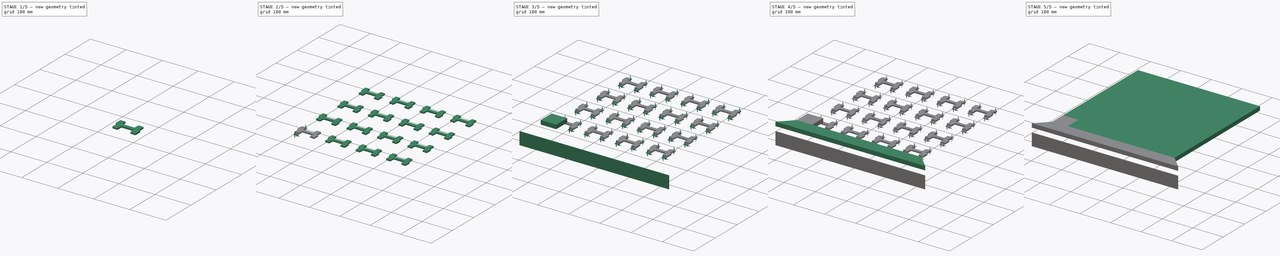
[diagram: build sequence overview — one tinted view per stage of 5, left to right]
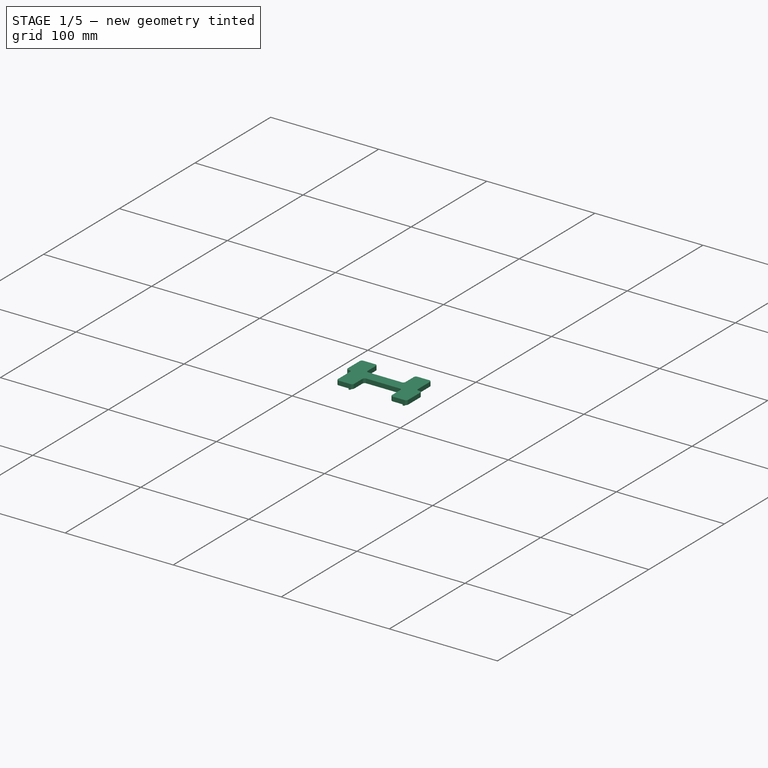
[diagram: stage 1 of 5 — iso view after this stage's code; geometry added in this stage tinted green]
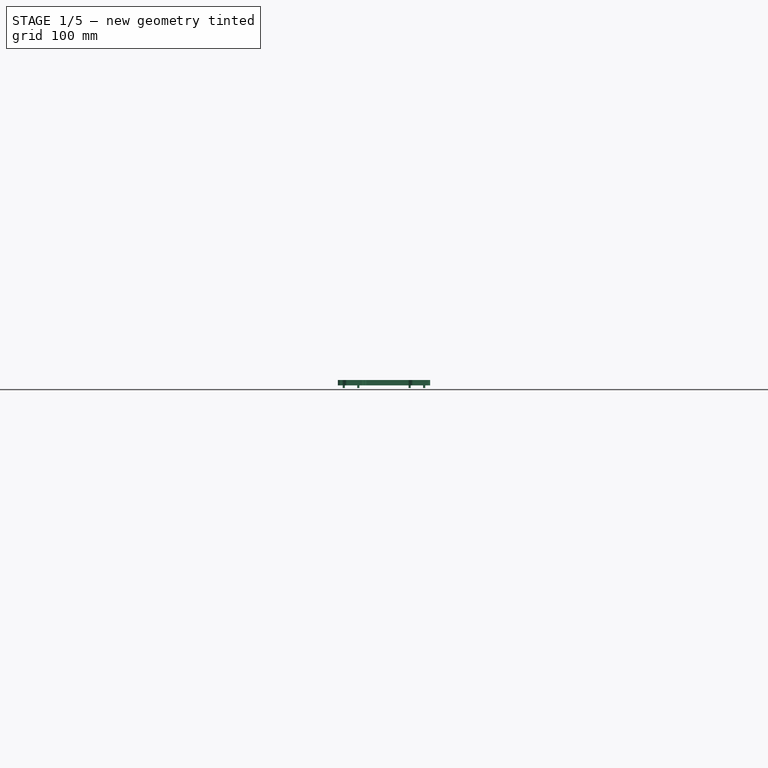
[diagram: stage 1 of 5 — front view after this stage's code; geometry added in this stage tinted green]
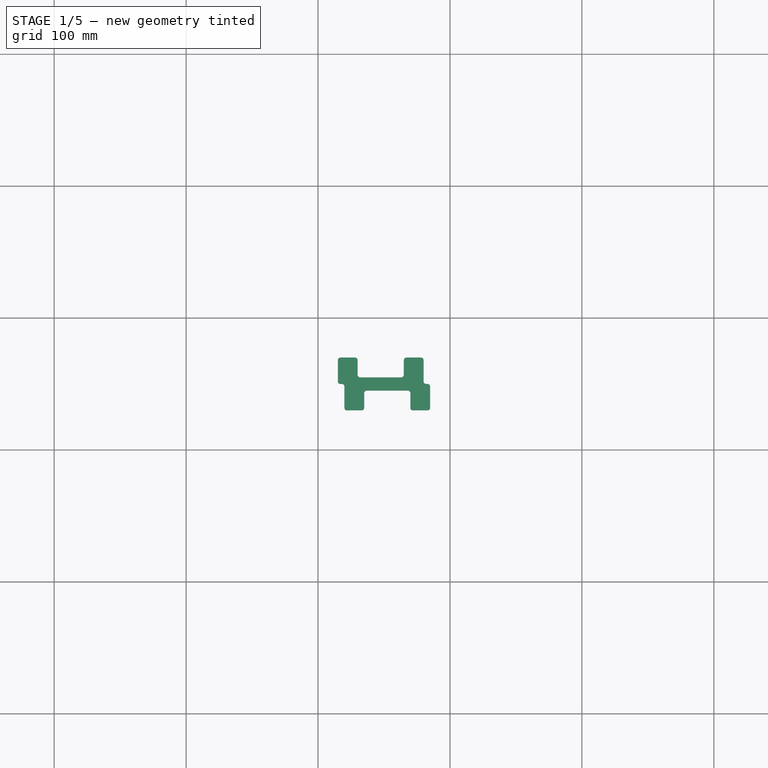
[diagram: stage 1 of 5 — top view after this stage's code; geometry added in this stage tinted green]
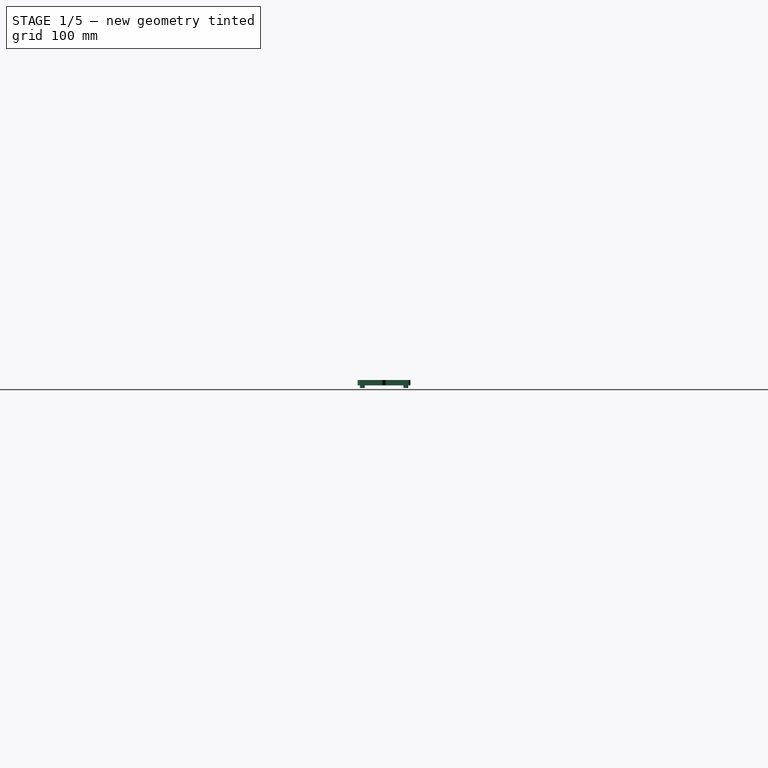
[diagram: stage 1 of 5 — right view after this stage's code; geometry added in this stage tinted green]
FCSTD DOCUMENT  (FreeCAD 0.19R23578 (Git))
Label: board
License: All rights reserved
LicenseURL: http://en.wikipedia.org/wiki/All_rights_reserved
objects: PartDesign::Body×13, Sketcher::SketchObject×10, PartDesign::FeatureBase×9, PartDesign::Pad×5, Part::FeaturePython×4, App::Part×4, Part::Feature×3, PartDesign::Pocket×2, PartDesign::Fillet×2, PartDesign::Hole×2, Part::Compound×1, PartDesign::Line×1, PartDesign::LinearPattern×1, PartDesign::PolarPattern×1, PartDesign::MultiTransform×1, PartDesign::CoordinateSystem×1
note: 63 computed .brp shape members not serialized (recipe doc carries the construction recipe); baked Part::Feature solids carry a one-line shape summary decoded from their .brp

FEATURE [PartDesign::Body] Body012  label="WallW"
  BaseFeature = -> Body009
  Group = -> [Clone009]
  Origin = -> Origin016
  Placement = pos=(8.9e-14,400,15) rot=(0,0,-1;1.5708rad)
  Tip = -> Clone009
FEATURE [Sketcher::SketchObject] Sketch006
  Placement = pos=(0,0,0) rot=(1,0,0;3.14159rad)
  sketch-geometry (16):
    g0: LineSegment StartX=15 StartY=-50 StartZ=0 EndX=15 EndY=-70 EndZ=0
    g1: LineSegment StartX=20 StartY=-30 StartZ=0 EndX=35 EndY=-30 EndZ=0
    g2: LineSegment StartX=35 StartY=-30 StartZ=0 EndX=35 EndY=-45 EndZ=0
    g3: LineSegment StartX=35 StartY=-45 StartZ=0 EndX=70 EndY=-45 EndZ=0
    g4: LineSegment StartX=70 StartY=-45 StartZ=0 EndX=70 EndY=-30 EndZ=0
    g5: LineSegment StartX=70 StartY=-30 StartZ=0 EndX=85 EndY=-30 EndZ=0
    g6: LineSegment StartX=85 StartY=-30 StartZ=0 EndX=85 EndY=-50 EndZ=0
    g7: LineSegment StartX=15 StartY=-70 StartZ=0 EndX=30 EndY=-70 EndZ=0
    g8: LineSegment StartX=30 StartY=-70 StartZ=0 EndX=30 EndY=-55 EndZ=0
    g9: LineSegment StartX=30 StartY=-55 StartZ=0 EndX=65 EndY=-55 EndZ=0
    g10: LineSegment StartX=65 StartY=-55 StartZ=0 EndX=65 EndY=-70 EndZ=0
    g11: LineSegment StartX=65 StartY=-70 StartZ=0 EndX=80 EndY=-70 EndZ=0
    g12: LineSegment StartX=20 StartY=-30 StartZ=0 EndX=20 EndY=-50 EndZ=0
    g13: LineSegment StartX=20 StartY=-50 StartZ=0 EndX=15 EndY=-50 EndZ=0
    g14: LineSegment StartX=80 StartY=-70 StartZ=0 EndX=80 EndY=-50 EndZ=0
    g15: LineSegment StartX=80 StartY=-50 StartZ=0 EndX=85 EndY=-50 EndZ=0
  constraints (48):
    c: Vertical(g0)
    c: Horizontal(g1)
    c: Coincident(g2,g1)
    c: Coincident(g3,g2)
    c: Horizontal(g3)
    c: Coincident(g4,g3)
    c: Vertical(g4)
    c: Coincident(g5,g4)
    c: Horizontal(g5)
    c: Coincident(g6,g5)
    c: Vertical(g2)
    c: Vertical(g6)
    c: Coincident(g7,g0)
    c: Horizontal(g7)
    c: Coincident(g8,g7)
    c: Vertical(g8)
    c: Coincident(g9,g8)
    c: Horizontal(g9)
    c: Coincident(g10,g9)
    c: Coincident(g11,g10)
    c: Horizontal(g11)
    c: DistanceX(g-2,g0) = 15
    c: DistanceX(g1,g1) = 15
    c: Distance(g8,g3) = 10
    c: Vertical(g12)
    c: Coincident(g13,g12)
    c: Horizontal(g13)
    c: Vertical(g14)
    c: Coincident(g15,g14)
    c: Horizontal(g15)
    c: Coincident(g13,g0)
    c: Coincident(g1,g12)
    c: Distance(g1,g4) = 50
    c: Coincident(g6,g15)
    c: Coincident(g11,g14)
    c: DistanceX(g13,g13) = 5
    c: Equal(g10,g8)
    c: DistanceY(g-1,g1) = -30
    c: Equal(g1,g5)
    c: Vertical(g10)
    c: DistanceY(g12,g12) = 20
    c: Equal(g12,g0)
    c: Equal(g6,g14)
    c: Equal(g4,g2)
    c: Equal(g7,g11)
    c: Equal(g1,g7)
    c: Equal(g13,g15)
    c: DistanceY(g10,g10) = 15
FEATURE [PartDesign::Pad] Pad004
  Direction = (1,1,1)
  Length = 4
  Length2 = 100
  Placement = pos=(0,0,0) rot=(1,0,0;3.14159rad)
  Profile = -> Sketch006
  Type = 0
FEATURE [PartDesign::Fillet] Fillet
  Base = -> Pad004 [Edge1,Edge2,Edge5,Edge8,Edge11,Edge14,Edge17,Edge20,Edge23,Edge26,Edge29,Edge32,Edge35,Edge38,Edge41,Edge44]
  BaseFeature = -> Pad004
  Placement = pos=(0,0,0) rot=(1,0,0;3.14159rad)
  Radius = 2
  SupportTransform = false
FEATURE [Sketcher::SketchObject] Sketch007  label="SpacerPCBHoleS"
  MapMode = 5
  Placement = pos=(0,0,-4) rot=(1,0,0;3.14159rad)
  Support = -> [Fillet]
  expr: Constraints[5] = .Constraints.hole_y
  sketch-geometry (4):
    g0: Circle CenterX=25 CenterY=-33.5 CenterZ=0 NormalX=0 NormalY=0 NormalZ=1 AngleXU=0 Radius=1.25
    g1: Circle CenterX=75 CenterY=-33.5 CenterZ=0 NormalX=0 NormalY=0 NormalZ=1 AngleXU=0 Radius=1.25
    g2: Circle CenterX=25 CenterY=-66.5 CenterZ=0 NormalX=0 NormalY=0 NormalZ=1 AngleXU=0 Radius=1.25
    g3: Circle CenterX=75 CenterY=-66.5 CenterZ=0 NormalX=0 NormalY=0 NormalZ=1 AngleXU=0 Radius=1.25
  constraints (12):
    c: DistanceY(g-1,g0) = -33.5  'hole_y'
    c: DistanceX(g-2,g0) = 25
    c: Diameter(g0) = 2.5
    c: Equal(g1,g0)
    c: Distance(g1,g0) = 50
    c: DistanceY(g-1,g1) = -33.5
    c: Equal(g2,g0)
    c: Equal(g3,g0)
    c: Distance(g2,g3) = 50
    c: DistanceY(g3,g-1) = 66.5
    c: DistanceY(g2,g-1) = 66.5
    c: DistanceX(g-1,g2) = 25
FEATURE [Sketcher::SketchObject] Sketch008  label="SpacerHookS"
  MapMode = 5
  Placement = pos=(0,0,-4) rot=(1,0,0;3.14159rad)
  sketch-geometry (4):
    g0: LineSegment StartX=29.7 StartY=-32.5 StartZ=0 EndX=29.7 EndY=-34.5 EndZ=0
    g1: LineSegment StartX=31.3 StartY=-32.5 StartZ=0 EndX=31.3 EndY=-34.5 EndZ=0
    g2: ArcOfCircle CenterX=30.5 CenterY=-32.5 CenterZ=0 NormalX=0 NormalY=0 NormalZ=1 AngleXU=0 Radius=0.8 StartAngle=-2.7e-15 EndAngle=3.14159
    g3: ArcOfCircle CenterX=30.5 CenterY=-34.5 CenterZ=0 NormalX=0 NormalY=0 NormalZ=1 AngleXU=0 Radius=0.8 StartAngle=3.14159 EndAngle=6.28319
  constraints (11):
    c: Vertical(g0)
    c: Vertical(g1)
    c: Tangent(g0,g2) = -1.5708
    c: Tangent(g1,g2) = 1.5708
    c: Tangent(g0,g3) = -1.5708
    c: Tangent(g1,g3) = 1.5708
    c: Equal(g0,g1)
    c: Radius(g2) = 0.8
    c: DistanceY(g0,g0) = 2
    c: DistanceY(g-1,g2) = -32.5
    c: DistanceX(g-2,g2) = 30.5
FEATURE [PartDesign::Pad] Pad005  label="SpacerHook"
  BaseFeature = -> Fillet
  Direction = (1,1,1)
  Length = 2
  Length2 = 100
  Placement = pos=(0,0,0) rot=(1,0,0;3.14159rad)
  Profile = -> Sketch008
  Type = 0
FEATURE [PartDesign::Line] DatumLine  label="CenterAxis"
  AttacherType = Attacher::AttachEngineLine
  AttachmentOffset = pos=(50,-50,0) rot=(0,0,1;0rad)
  Length = 20
  MapMode = 18
  Placement = pos=(50,50,0) rot=(1,0,0;3.14159rad)
  ResizeMode = 0
  Support = -> [Pad005]
FEATURE [PartDesign::LinearPattern] LinearPattern
  Direction = -> Sketch008 [H_Axis]
  Length = 50
  Occurrences = 2
  Placement = pos=(0,0,0) rot=(1,0,0;3.14159rad)
FEATURE [PartDesign::PolarPattern] PolarPattern001
  Angle = 360
  Axis = -> DatumLine
  Occurrences = 2
  Placement = pos=(0,0,0) rot=(1,0,0;3.14159rad)
FEATURE [PartDesign::MultiTransform] MultiTransform
  BaseFeature = -> Pad005
  Originals = -> [Pad005]
  Placement = pos=(0,0,0) rot=(1,0,0;3.14159rad)
  Transformations = -> [LinearPattern,PolarPattern001]
FEATURE [Sketcher::SketchObject] Sketch009
  MapMode = 5
  Placement = pos=(0,0,-4) rot=(1,0,0;3.14159rad)
  Support = -> [MultiTransform]
  sketch-geometry (16):
    g0: LineSegment StartX=21.5 StartY=-40 StartZ=0 EndX=33.5 EndY=-40 EndZ=0
    g1: LineSegment StartX=33.5 StartY=-40 StartZ=0 EndX=33.5 EndY=-46.5 EndZ=0
    g2: LineSegment StartX=33.5 StartY=-46.5 StartZ=0 EndX=71.5 EndY=-46.5 EndZ=0
    g3: LineSegment StartX=71.5 StartY=-46.5 StartZ=0 EndX=71.5 EndY=-40 EndZ=0
    g4: LineSegment StartX=71.5 StartY=-40 StartZ=0 EndX=83.5 EndY=-40 EndZ=0
    g5: LineSegment StartX=28.5 StartY=-53.5 StartZ=0 EndX=66.5 EndY=-53.5 EndZ=0
    g6: LineSegment StartX=28.5 StartY=-53.5 StartZ=0 EndX=28.5 EndY=-60 EndZ=0
    g7: LineSegment StartX=28.5 StartY=-60 StartZ=0 EndX=16.5 EndY=-60 EndZ=0
    g8: LineSegment StartX=66.5 StartY=-60 StartZ=0 EndX=78.5 EndY=-60 EndZ=0
    g9: LineSegment StartX=78.5 StartY=-60 StartZ=0 EndX=78.5 EndY=-48.5 EndZ=0
    g10: LineSegment StartX=78.5 StartY=-48.5 StartZ=0 EndX=83.5 EndY=-48.5 EndZ=0
    g11: LineSegment StartX=83.5 StartY=-48.5 StartZ=0 EndX=83.5 EndY=-40 EndZ=0
    g12: LineSegment StartX=21.5 StartY=-40 StartZ=0 EndX=21.5 EndY=-51.5 EndZ=0
    g13: LineSegment StartX=21.5 StartY=-51.5 StartZ=0 EndX=16.5 EndY=-51.5 EndZ=0
    g14: LineSegment StartX=16.5 StartY=-51.5 StartZ=0 EndX=16.5 EndY=-60 EndZ=0
    g15: LineSegment StartX=66.5 StartY=-53.5 StartZ=0 EndX=66.5 EndY=-60 EndZ=0
  constraints (48):
    c: Horizontal(g0)
    c: Coincident(g1,g0)
    c: Vertical(g1)
    c: Horizontal(g2)
    c: Vertical(g3)
    c: Horizontal(g4)
    c: Horizontal(g5)
    c: Vertical(g6)
    c: Horizontal(g7)
    c: Horizontal(g8)
    c: Coincident(g9,g8)
    c: Vertical(g9)
    c: Horizontal(g10)
    c: Coincident(g11,g4)
    c: Vertical(g11)
    c: Coincident(g12,g0)
    c: Vertical(g12)
    c: Coincident(g14,g7)
    c: Vertical(g14)
    c: Coincident(g15,g5)
    c: Coincident(g15,g8)
    c: Coincident(g5,g6)
    c: Horizontal(g13)
    c: DistanceX(g0,g0) = 12
    c: DistanceY(g12,g12) = 11.5
    c: DistanceY(g1,g1) = 6.5
    c: Coincident(g2,g1)
    c: Coincident(g3,g2)
    c: DistanceX(g13,g13) = 5
    c: Coincident(g12,g13)
    c: Coincident(g13,g14)
    c: Equal(g0,g7)
    c: Equal(g7,g8)
    c: Equal(g8,g4)
    c: Coincident(g9,g10)
    c: Coincident(g10,g11)
    c: Coincident(g3,g4)
    c: Equal(g12,g9)
    c: Equal(g6,g1)
    c: Equal(g1,g3)
    c: Equal(g10,g13)
    c: DistanceX(g2,g2) = 38
    c: Equal(g2,g5)
    c: DistanceY(g-1,g0) = -40
    c: DistanceX(g-2,g0) = 21.5
    c: Equal(g14,g11)
    c: Coincident(g6,g7)
    c: Distance(g7,g0) = 20
FEATURE [PartDesign::Pocket] Pocket002
  BaseFeature = -> MultiTransform
  Length = 2
  Length2 = 100
  Placement = pos=(0,0,0) rot=(1,0,0;3.14159rad)
  Profile = -> Sketch009
  Type = 0
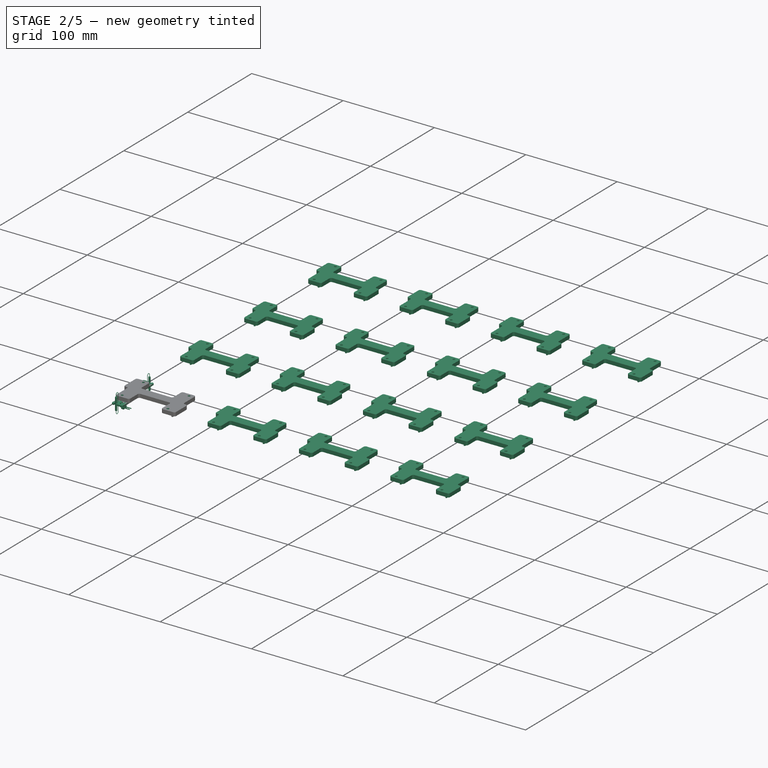
[diagram: stage 2 of 5 — iso view after this stage's code; geometry added in this stage tinted green]
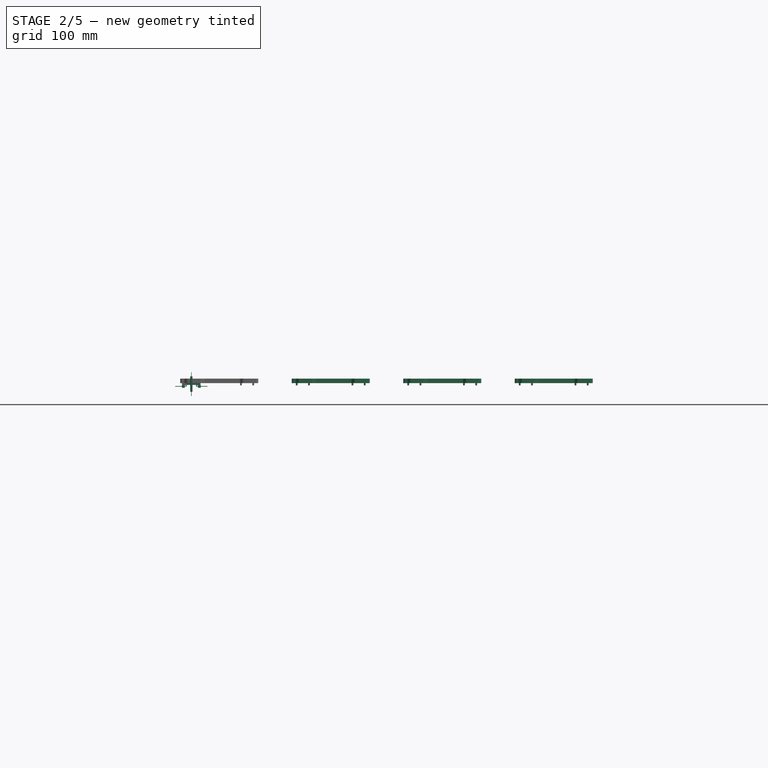
[diagram: stage 2 of 5 — front view after this stage's code; geometry added in this stage tinted green]
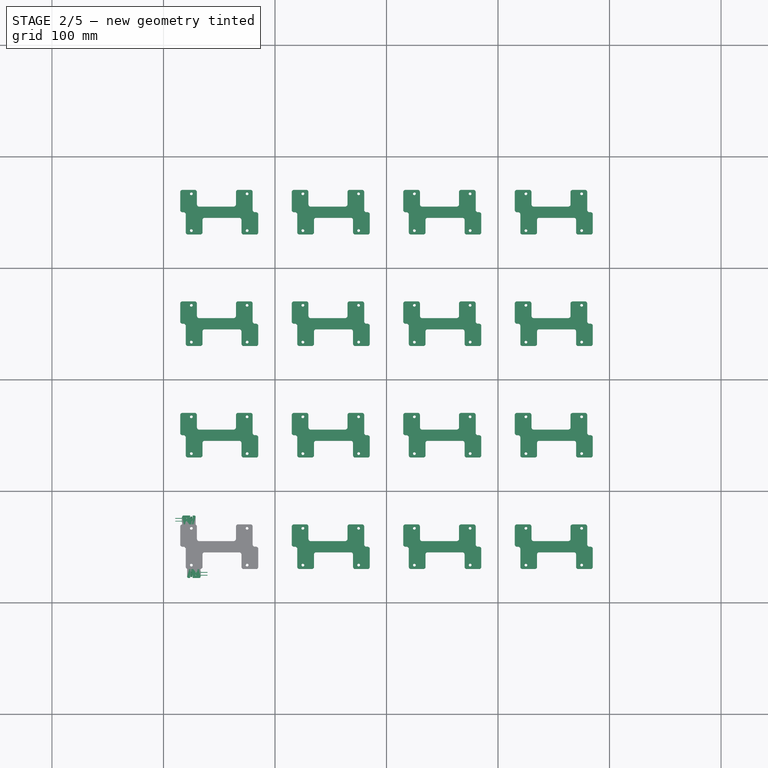
[diagram: stage 2 of 5 — top view after this stage's code; geometry added in this stage tinted green]
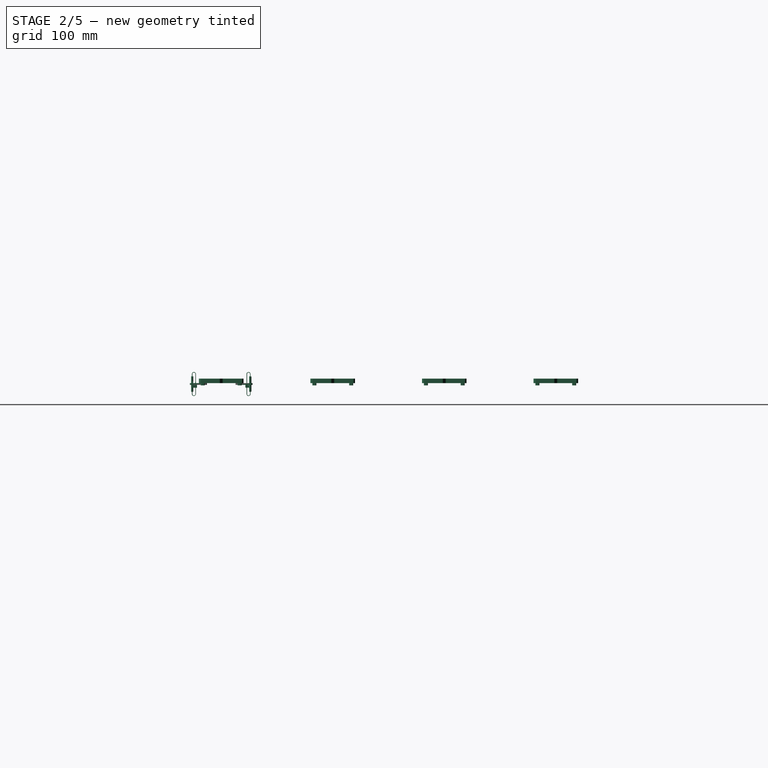
[diagram: stage 2 of 5 — right view after this stage's code; geometry added in this stage tinted green]
FEATURE [PartDesign::Fillet] Fillet001
  Base = -> Pocket002 [Edge154,Edge153,Edge182,Edge180,Edge178,Edge176,Edge174,Edge172,Edge170,Edge168,Edge166,Edge164,Edge162,Edge160,Edge158,Edge156]
  BaseFeature = -> Pocket002
  Placement = pos=(0,0,0) rot=(1,0,0;3.14159rad)
  Radius = 1
  SupportTransform = false
FEATURE [PartDesign::Hole] Hole  label="SpacerPCBHole"
  BaseFeature = -> Fillet001
  Depth = 25
  DepthType = 1
  Diameter = 2.5
  DrillPoint = 0
  DrillPointAngle = 118
  HoleCutCountersinkAngle = 90
  HoleCutDepth = 0
  HoleCutDiameter = 0
  HoleCutType = 0
  ModelActualThread = false
  Placement = pos=(0,0,0) rot=(1,0,0;3.14159rad)
  Profile = -> Sketch007
  Tapered = false
  TaperedAngle = 90
  ThreadAngle = 60
  ThreadClass = 0
  ThreadCutOffInner = 0.0541266
  ThreadCutOffOuter = 0.108253
  ThreadDirection = 0
  ThreadFit = 0
  ThreadPitch = 0.5
  ThreadSize = 9
  ThreadType = 1
  Threaded = true
FEATURE [Sketcher::SketchObject] Sketch010
  MapMode = 5
  Placement = pos=(0,3e-16,-2) rot=(1,0,0;3.14159rad)
  Support = -> [Hole]
  sketch-geometry (2):
    g0: Circle CenterX=25 CenterY=-50 CenterZ=0 NormalX=0 NormalY=0 NormalZ=1 AngleXU=0 Radius=1.7
    g1: Circle CenterX=75 CenterY=-50 CenterZ=0 NormalX=0 NormalY=0 NormalZ=1 AngleXU=0 Radius=1.7
  constraints (6):
    c: Equal(g0,g1)
    c: Diameter(g0) = 3.4
    c: DistanceY(g-1,g0) = -50
    c: DistanceY(g-1,g1) = -50
    c: DistanceX(g-2,g0) = 25
    c: DistanceX(g-2,g1) = 75
FEATURE [PartDesign::Hole] Hole001
  BaseFeature = -> Hole
  Depth = 25
  DepthType = 1
  Diameter = 3.4
  DrillPoint = 0
  DrillPointAngle = 118
  HoleCutCountersinkAngle = 90
  HoleCutDepth = 0
  HoleCutDiameter = 6
  HoleCutType = 0
  ModelActualThread = false
  Placement = pos=(0,0,0) rot=(1,0,0;3.14159rad)
  Profile = -> Sketch010
  Tapered = false
  TaperedAngle = 90
  ThreadAngle = 60
  ThreadClass = 0
  ThreadCutOffInner = 0.0541266
  ThreadCutOffOuter = 0.108253
  ThreadDirection = 0
  ThreadFit = 0
  ThreadPitch = 0.5
  ThreadSize = 9
  ThreadType = 1
  Threaded = false
FEATURE [PartDesign::Body] Body013  label="SpacerB"
  Group = -> [Pad004,Fillet,Sketch007,Sketch008,Pad005,DatumLine,MultiTransform,LinearPattern,PolarPattern001,Sketch009,Pocket002,Fillet001,Hole,Sketch010,Hole001]
  Origin = -> Origin017
  Tip = -> Hole
FEATURE [PartDesign::CoordinateSystem] Local_CS_bfe008
  AttacherType = Attacher::AttachEngine3D
FEATURE [Part::Feature] Pcb_bfe008
  Placement = pos=(-158.115,99.822,0) rot=(0,0,1;0rad)
  shape: bbox 12.07 x 15.24 x 1.6 mm, 23 faces (baked)
FEATURE [Sketcher::SketchObject] PCB_Sketch_bfe008
  sketch-geometry (19):
    g0: LineSegment StartX=-4.5 StartY=9.5 StartZ=0 EndX=-4.5 EndY=7.5 EndZ=0
    g1: LineSegment StartX=-6.5 StartY=9.5 StartZ=0 EndX=-6.5 EndY=7.5 EndZ=0
    g2: LineSegment StartX=-6.985 StartY=-3.048 StartZ=0 EndX=-1.143 EndY=-3.048 EndZ=0
    g3: LineSegment StartX=-8.255 StartY=10.922 StartZ=0 EndX=-8.255 EndY=-1.778 EndZ=0
    g4: LineSegment StartX=2.54 StartY=12.192 StartZ=0 EndX=-6.985 EndY=12.192 EndZ=0
    g5: LineSegment StartX=3.81 StartY=-1.778 StartZ=0 EndX=3.81 EndY=10.922 EndZ=0
    g6: LineSegment StartX=1.143 StartY=-3.048 StartZ=0 EndX=2.54 EndY=-3.048 EndZ=0
    g7: LineSegment StartX=-0.254 StartY=8.4e-15 StartZ=0 EndX=0.254 EndY=6.6e-15 EndZ=0
    g8: LineSegment StartX=1.143 StartY=-0.889 StartZ=0 EndX=1.143 EndY=-3.048 EndZ=0
    g9: LineSegment StartX=-1.143 StartY=-0.889 StartZ=0 EndX=-1.143 EndY=-3.048 EndZ=0
    g10: ArcOfCircle CenterX=-5.5 CenterY=7.5 CenterZ=0 NormalX=0 NormalY=0 NormalZ=1 AngleXU=0 Radius=1 StartAngle=3.14159 EndAngle=6.28319
    g11: ArcOfCircle CenterX=-5.5 CenterY=9.5 CenterZ=0 NormalX=0 NormalY=0 NormalZ=1 AngleXU=0 Radius=1 StartAngle=0 EndAngle=3.14159
    g12: ArcOfCircle CenterX=-6.985 CenterY=-1.778 CenterZ=0 NormalX=0 NormalY=0 NormalZ=1 AngleXU=0 Radius=1.27 StartAngle=3.14159 EndAngle=4.71239
    g13: ArcOfCircle CenterX=2.54 CenterY=-1.778 CenterZ=0 NormalX=0 NormalY=0 NormalZ=1 AngleXU=0 Radius=1.27 StartAngle=4.71239 EndAngle=6.28319
    g14: ArcOfCircle CenterX=2.54 CenterY=10.922 CenterZ=0 NormalX=0 NormalY=0 NormalZ=1 AngleXU=0 Radius=1.27 StartAngle=0 EndAngle=1.5708
    g15: ArcOfCircle CenterX=-6.985 CenterY=10.922 CenterZ=0 NormalX=0 NormalY=0 NormalZ=1 AngleXU=0 Radius=1.27 StartAngle=1.5708 EndAngle=3.14159
    g16: ArcOfCircle CenterX=0.254 CenterY=-0.889 CenterZ=0 NormalX=0 NormalY=0 NormalZ=1 AngleXU=0 Radius=0.889 StartAngle=0 EndAngle=1.5708
    g17: ArcOfCircle CenterX=-0.254 CenterY=-0.889 CenterZ=0 NormalX=0 NormalY=0 NormalZ=1 AngleXU=0 Radius=0.889 StartAngle=1.5708 EndAngle=3.14159
    g18: Circle CenterX=0 CenterY=8.5 CenterZ=0 NormalX=0 NormalY=0 NormalZ=1 AngleXU=0 Radius=1.7
  constraints (18):
    c: Coincident(g3,g12)
    c: Coincident(g3,g15)
    c: Coincident(g2,g12)
    c: Coincident(g4,g15)
    c: Coincident(g1,g10)
    c: Coincident(g1,g11)
    c: Coincident(g0,g10)
    c: Coincident(g0,g11)
    c: Coincident(g2,g9)
    c: Coincident(g9,g17)
    c: Coincident(g7,g17)
    c: Coincident(g7,g16)
    c: Coincident(g6,g8)
    c: Coincident(g8,g16)
    c: Coincident(g6,g13)
    c: Coincident(g14,g4)
    c: Coincident(g13,g5)
    c: Coincident(g5,g14)
FEATURE [App::Part] Board_Geoms_bfe008  label="Board_Geoms_bfe010"
  Group = -> [Local_CS_bfe008,Pcb_bfe008,PCB_Sketch_bfe008]
  Origin = -> Origin019
FEATURE [Part::Feature] Shape002  label="SW1_Clone001_60011C9F001"
  Placement = pos=(0,2.032,0) rot=(0,0,1;0rad)
  shape: bbox 2.165 x 4.535 x 21.85 mm, 15 faces, 3 solids (baked)
FEATURE [Part::Feature] Shape003  label="J1_PinHeader_1x02_P254mm_Horizontal_60011D090"
  Placement = pos=(-4.445,-0.508,0) rot=(0,0,1;3.14159rad)
  shape: bbox 10.36 x 5.08 x 5.54 mm, 58 faces (baked)
FEATURE [App::Part] Top_bfe008  label="Top_bfe010"
  Group = -> [Shape002,Shape003]
  Origin = -> Origin021
FEATURE [App::Part] Step_Models_bfe008  label="Step_Models_bfe010"
  Group = -> [Top_bfe008]
  Origin = -> Origin020
FEATURE [App::Part] Board_bfe008  label="reed_fix002"
  Group = -> [Board_Geoms_bfe008,Step_Models_bfe008]
  Origin = -> Origin018
  Placement = pos=(25,75,-5.6) rot=(1,0,0;3.14159rad)
FEATURE [Part::FeaturePython] Array004  # Draft array (typed FeaturePython)
  Angle = 360
  ArrayType = 1
  Axis = (0,0,1)
  Base = -> Board_bfe008
  Center = (25,50,0)
  Count = 2
  ExpandArray = false
  Fuse = false
  IntervalAxis = (0,0,0)
  IntervalX = (50,0,0)
  IntervalY = (0,50,0)
  IntervalZ = (0,0,50)
  NumberCircles = 3
  NumberPolar = 2
  NumberX = 2
  NumberY = 2
  NumberZ = 1
  PlacementList = 2 placements: [(25,75,-5.6),(25,25,-5.6)]
  RadialDistance = 50
  ScaleList = (2) [(1,1,1),(1,1,1)]
  Symmetry = 1
  TangentialDistance = 25
FEATURE [Part::FeaturePython] Array006  label="SpacerArray"  # Draft array (typed FeaturePython)
  Angle = 360
  ArrayType = 0
  Axis = (0,0,1)
  Base = -> Body013
  Center = (0,0,0)
  Count = 16
  ExpandArray = false
  Fuse = false
  IntervalAxis = (0,0,0)
  IntervalX = (100,0,0)
  IntervalY = (0,100,0)
  IntervalZ = (0,0,100)
  NumberCircles = 3
  NumberPolar = 5
  NumberX = 4
  NumberY = 4
  NumberZ = 1
  PlacementList = 16 placements: [(0,0,0),(0,100,0),(0,200,0),(0,300,0),(100,0,0),(100,100,0),(100,200,0),(100,300,0),(200,0,0),(200,100,0),(200,200,0),(200,300,0),(300,0,0),(300,100,0),(300,200,0),(300,300,0)]
  RadialDistance = 50
  ScaleList = (16) [(1,1,1),(1,1,1),(1,1,1),(1,1,1),(1,1,1),(1,1,1),(1,1,1),(1,1,1),(1,1,1),(1,1,1),(1,1,1),(1,1,1),(1,1,1),(1,1,1),(1,1,1),(1,1,1)]
  Symmetry = 1
  TangentialDistance = 25
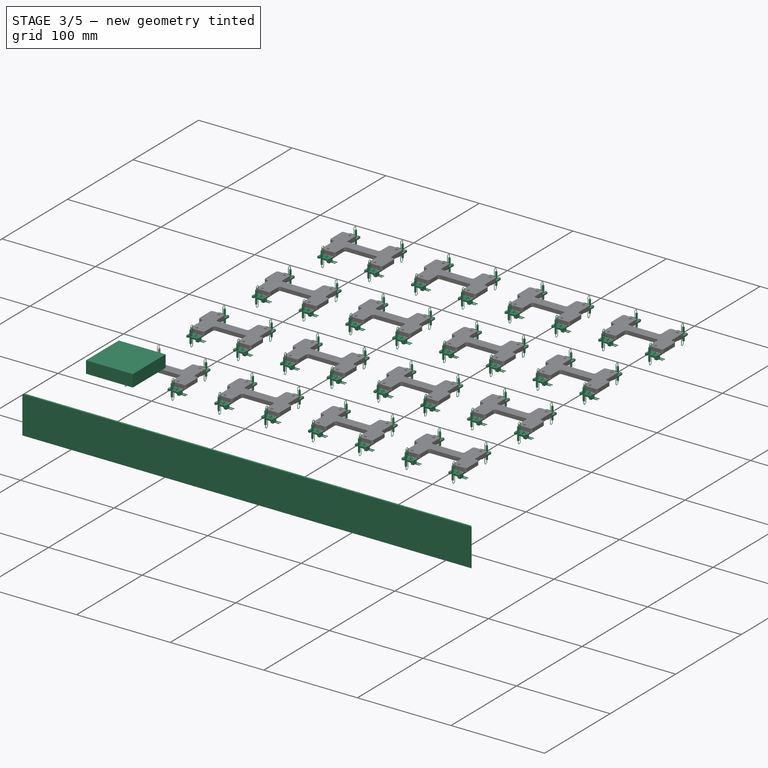
[diagram: stage 3 of 5 — iso view after this stage's code; geometry added in this stage tinted green]
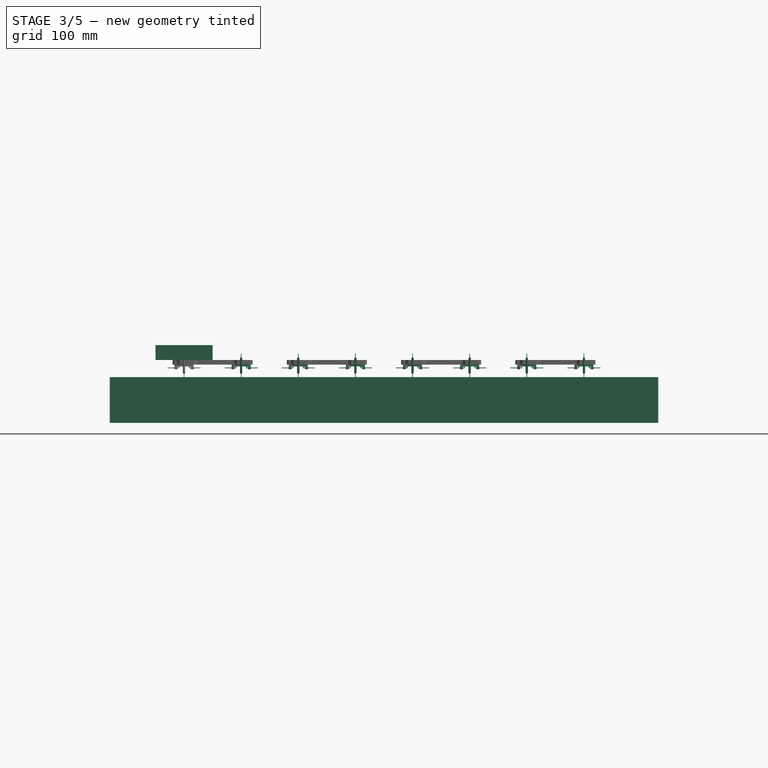
[diagram: stage 3 of 5 — front view after this stage's code; geometry added in this stage tinted green]
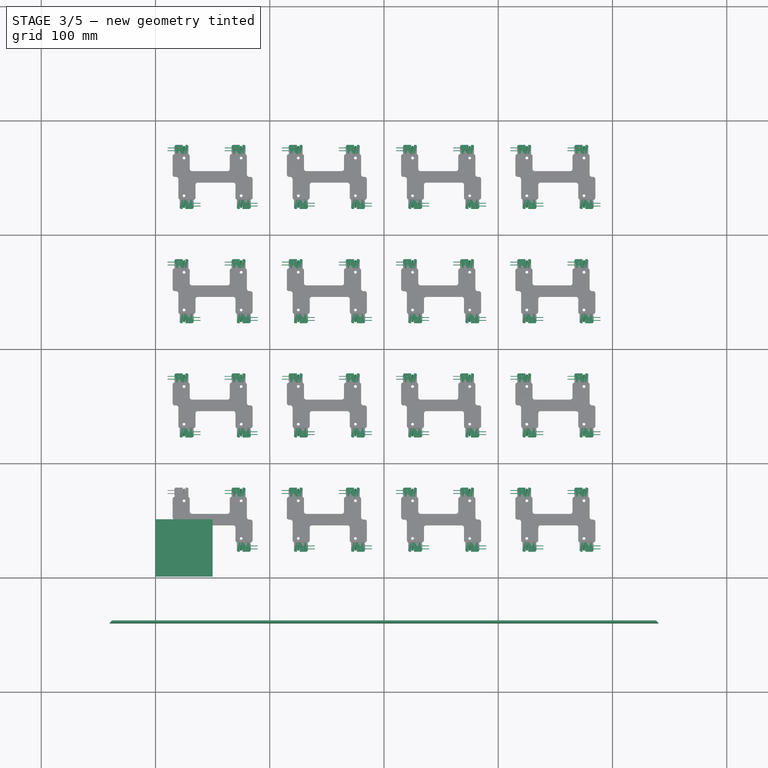
[diagram: stage 3 of 5 — top view after this stage's code; geometry added in this stage tinted green]
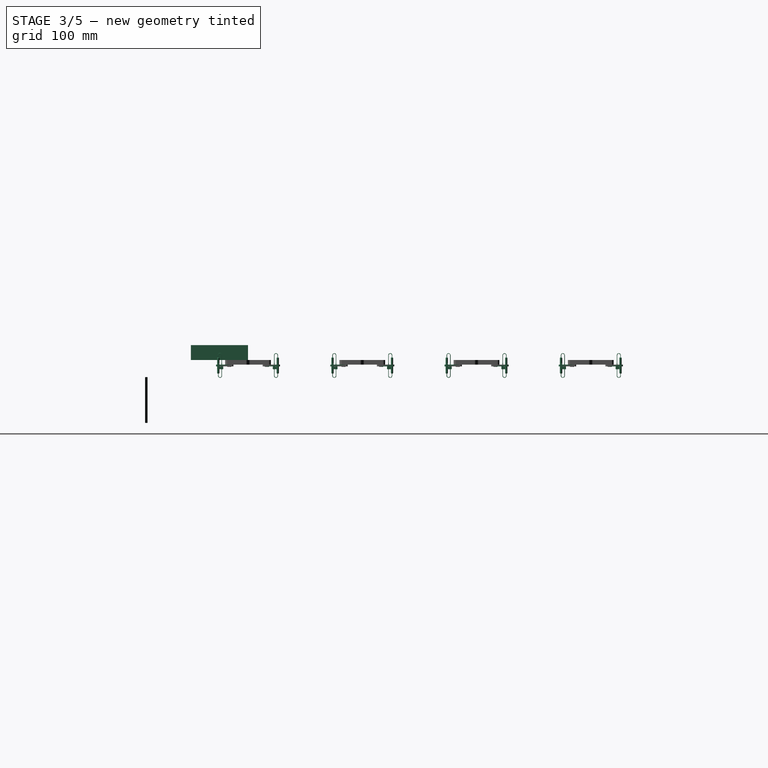
[diagram: stage 3 of 5 — right view after this stage's code; geometry added in this stage tinted green]
FEATURE [Sketcher::SketchObject] Sketch  label="Square"
  MapMode = 5
  Support = -> [XY_Plane]
  sketch-geometry (4):
    g0: LineSegment StartX=0 StartY=50 StartZ=0 EndX=50 EndY=50 EndZ=0
    g1: LineSegment StartX=50 StartY=50 StartZ=0 EndX=50 EndY=0 EndZ=0
    g2: LineSegment StartX=50 StartY=0 StartZ=0 EndX=0 EndY=0 EndZ=0
    g3: LineSegment StartX=0 StartY=0 StartZ=0 EndX=0 EndY=50 EndZ=0
  constraints (11):
    c: Coincident(g0,g1)
    c: Coincident(g1,g2)
    c: Coincident(g2,g3)
    c: Coincident(g3,g0)
    c: Horizontal(g0)
    c: Horizontal(g2)
    c: Vertical(g1)
    c: Vertical(g3)
    c: Coincident(g2,g-1)
    c: DistanceX(g2,g2) = 50
    c: DistanceY(g3,g3) = 50
FEATURE [PartDesign::Pad] Pad  label="SquarePad"
  Direction = (1,1,1)
  Length = 13
  Length2 = 100
  Profile = -> Sketch
  Type = 0
FEATURE [Sketcher::SketchObject] Sketch004
  MapMode = 5
  Support = -> [XY_Plane013]
  sketch-geometry (4):
    g0: LineSegment StartX=-40 StartY=-40 StartZ=0 EndX=-38 EndY=-38 EndZ=0
    g1: LineSegment StartX=-38 StartY=-38 StartZ=0 EndX=438 EndY=-38 EndZ=0
    g2: LineSegment StartX=438 StartY=-38 StartZ=0 EndX=440 EndY=-40 EndZ=0
    g3: LineSegment StartX=440 StartY=-40 StartZ=0 EndX=-40 EndY=-40 EndZ=0
  constraints (12):
    c: Coincident(g1,g0)
    c: Horizontal(g1)
    c: Coincident(g3,g0)
    c: Horizontal(g3)
    c: Angle(g3,g0) = 0.785398
    c: Angle(g2,g3) = 0.785398
    c: DistanceX(g3,g3) = 480
    c: Distance(g1,g3) = 2
    c: Coincident(g1,g2)
    c: Coincident(g3,g2)
    c: DistanceY(g-1,g0) = -40
    c: DistanceX(g-2,g0) = -40
FEATURE [PartDesign::Pad] Pad003
  Direction = (1,1,1)
  Length = 40
  Length2 = 100
  Profile = -> Sketch004
  Type = 0
FEATURE [PartDesign::Body] Body009  label="WallS"
  Group = -> [Sketch004,Pad003]
  Origin = -> Origin013
  Placement = pos=(0,0,-40) rot=(0,0,1;0rad)
  Tip = -> Pad003
FEATURE [PartDesign::FeatureBase] Clone007
  BaseFeature = -> Body009
  Placement = pos=(0,0,-55) rot=(0,0,1;0rad)
FEATURE [PartDesign::Body] Body010  label="WallE"
  BaseFeature = -> Body009
  Group = -> [Clone007]
  Origin = -> Origin014
  Placement = pos=(400,8.9e-14,15) rot=(0,0,1;1.5708rad)
  Tip = -> Clone007
FEATURE [PartDesign::FeatureBase] Clone008
  BaseFeature = -> Body009
  Placement = pos=(0,0,-55) rot=(0,0,1;0rad)
FEATURE [PartDesign::Body] Body011  label="WallN"
  BaseFeature = -> Body009
  Group = -> [Clone008]
  Origin = -> Origin015
  Placement = pos=(400,400,15) rot=(0,0,1;3.14159rad)
  Tip = -> Clone008
FEATURE [PartDesign::FeatureBase] Clone009
  BaseFeature = -> Body009
  Placement = pos=(0,0,-55) rot=(0,0,1;0rad)
FEATURE [Part::FeaturePython] Array005  label="ReedFixArray"  # Draft array (typed FeaturePython)
  Angle = 360
  ArrayType = 0
  Axis = (0,0,1)
  Base = -> Array004
  Center = (0,0,0)
  Count = 32
  ExpandArray = false
  Fuse = false
  IntervalAxis = (0,0,0)
  IntervalX = (50,0,0)
  IntervalY = (0,100,0)
  IntervalZ = (0,0,100)
  NumberCircles = 3
  NumberPolar = 5
  NumberX = 8
  NumberY = 4
  NumberZ = 1
  PlacementList = 32 placements: [(0,0,0),(0,100,0),(0,200,0),(0,300,0),(50,0,0),(50,100,0),(50,200,0),(50,300,0),(100,0,0),(100,100,0),(100,200,0),(100,300,0),(150,0,0),(150,100,0),(150,200,0),(150,300,0),(200,0,0),(200,100,0),(200,200,0),(200,300,0),(250,0,0),(250,100,0),(250,200,0),(250,300,0),(300,0,0),(300,100,0),(300,200,0),(300,300,0),(350,0,0),(350,100,0),(350,200,0),(350,300,0)]
  RadialDistance = 50
  ScaleList = (32) [(1,1,1),(1,1,1),(1,1,1),(1,1,1),(1,1,1),(1,1,1),(1,1,1),(1,1,1),(1,1,1),(1,1,1),(1,1,1),(1,1,1),(1,1,1),(1,1,1),(1,1,1),(1,1,1),(1,1,1),(1,1,1),+14 more]
  Symmetry = 1
  TangentialDistance = 25
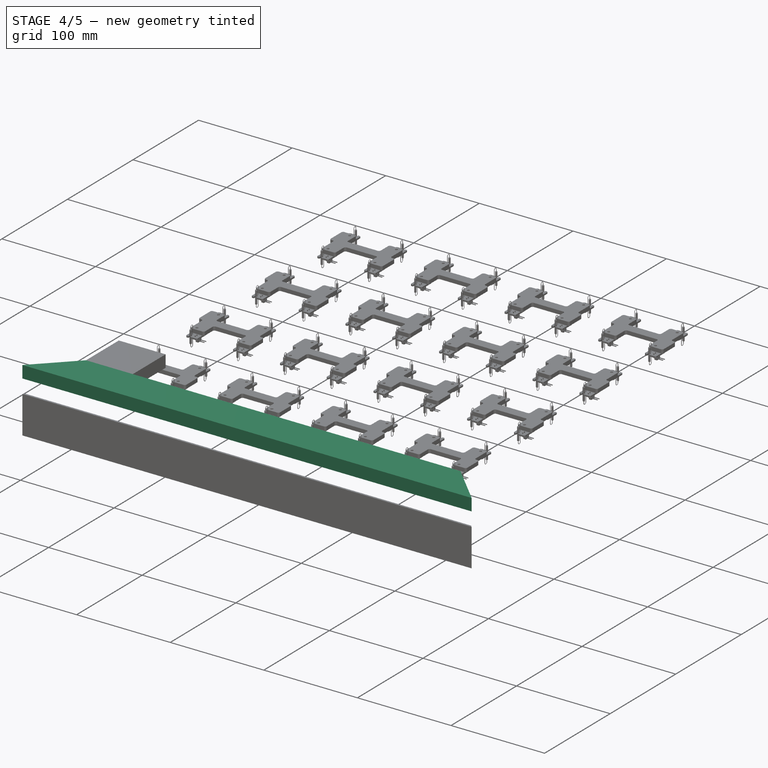
[diagram: stage 4 of 5 — iso view after this stage's code; geometry added in this stage tinted green]
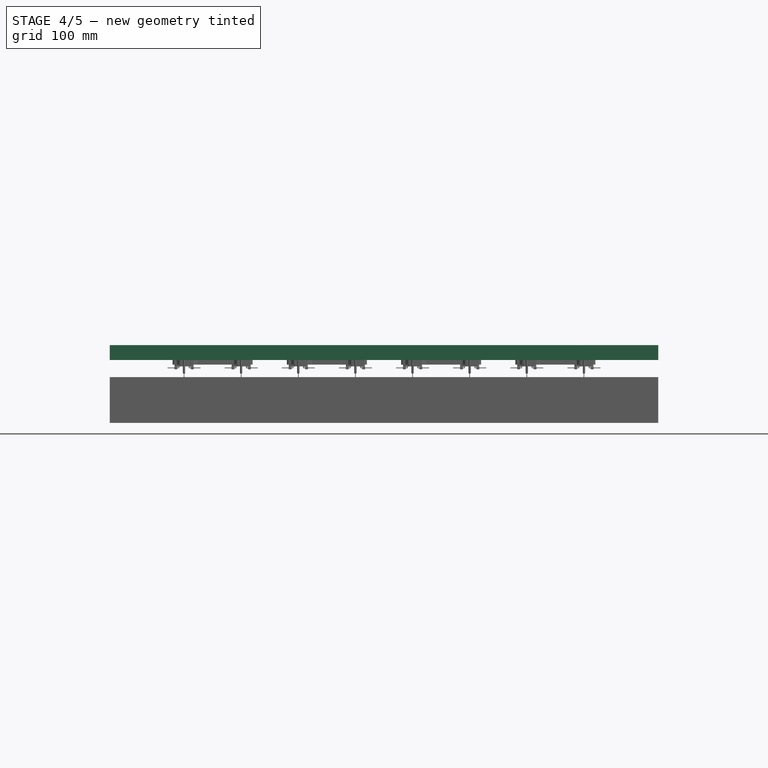
[diagram: stage 4 of 5 — front view after this stage's code; geometry added in this stage tinted green]
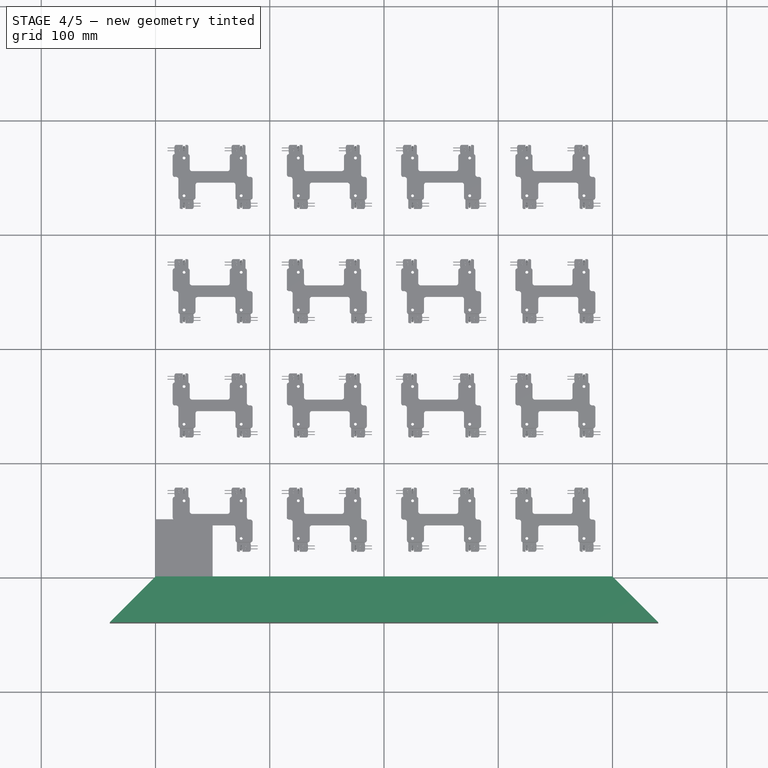
[diagram: stage 4 of 5 — top view after this stage's code; geometry added in this stage tinted green]
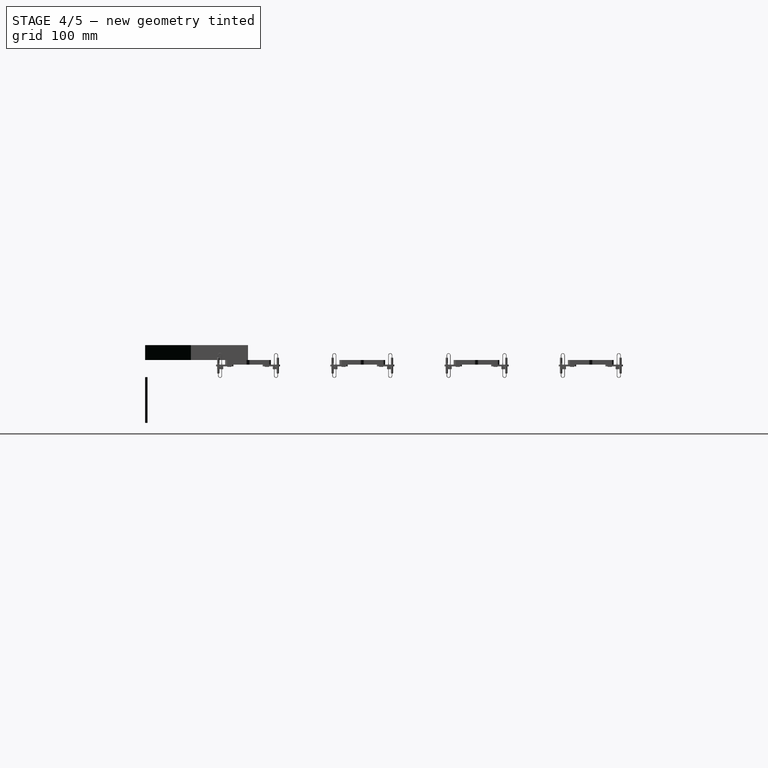
[diagram: stage 4 of 5 — right view after this stage's code; geometry added in this stage tinted green]
FEATURE [Sketcher::SketchObject] Sketch001  label="Border"
  MapMode = 5
  Support = -> [XY_Plane004]
  sketch-geometry (4):
    g0: LineSegment StartX=0 StartY=0 StartZ=0 EndX=-40 EndY=-40 EndZ=0
    g1: LineSegment StartX=-40 StartY=-40 StartZ=0 EndX=440 EndY=-40 EndZ=0
    g2: LineSegment StartX=440 StartY=-40 StartZ=0 EndX=400 EndY=0 EndZ=0
    g3: LineSegment StartX=400 StartY=0 StartZ=0 EndX=0 EndY=0 EndZ=0
  constraints (11):
    c: Coincident(g0,g-1)
    c: Coincident(g1,g0)
    c: Horizontal(g1)
    c: Coincident(g2,g1)
    c: Coincident(g3,g2)
    c: Coincident(g3,g0)
    c: Horizontal(g3)
    c: DistanceX(g1,g1) = 480
    c: DistanceX(g3,g3) = 400
    c: Angle(g2,g1) = 0.785398
    c: Angle(g1,g0) = 0.785398
FEATURE [PartDesign::Pad] Pad001  label="BorderPadS"
  Direction = (1,1,1)
  Length = 13
  Length2 = 100
  Profile = -> Sketch001
  Type = 0
FEATURE [PartDesign::Body] Body004  label="BorderS"
  Group = -> [Sketch001,Pad001]
  Origin = -> Origin004
  Tip = -> Pad001
FEATURE [PartDesign::FeatureBase] Clone003  label="BorderPadW"
  BaseFeature = -> Body004
FEATURE [PartDesign::Body] Body005  label="BorderW"
  BaseFeature = -> Body004
  Group = -> [Clone003]
  Origin = -> Origin005
  Placement = pos=(8.9e-14,400,0) rot=(0,0,-1;1.5708rad)
  Tip = -> Clone003
FEATURE [PartDesign::FeatureBase] Clone004  label="BorderPadN"
  BaseFeature = -> Body004
FEATURE [PartDesign::Body] Body006  label="BorderN"
  BaseFeature = -> Body004
  Group = -> [Clone004]
  Origin = -> Origin006
  Placement = pos=(400,400,0) rot=(0,0,1;3.14159rad)
  Tip = -> Clone004
FEATURE [PartDesign::FeatureBase] Clone005  label="BorderPadE"
  BaseFeature = -> Body004
FEATURE [PartDesign::Body] Body007  label="BorderE"
  BaseFeature = -> Body004
  Group = -> [Clone005]
  Origin = -> Origin007
  Placement = pos=(400,8.9e-14,0) rot=(0,0,1;1.5708rad)
  Tip = -> Clone005
FEATURE [Sketcher::SketchObject] Sketch002  label="ReedDrill"
  MapMode = 5
  Placement = pos=(0,0,0) rot=(1,0,0;3.14159rad)
  Support = -> [Pad]
  sketch-geometry (1):
    g0: Circle CenterX=25 CenterY=-25 CenterZ=0 NormalX=0 NormalY=0 NormalZ=1 AngleXU=0 Radius=4
  constraints (3):
    c: Diameter(g0) = 8
    c: DistanceX(g-2,g0) = 25
    c: DistanceY(g-1,g0) = -25
FEATURE [PartDesign::Pocket] Pocket  label="ReedHole"
  BaseFeature = -> Pad
  Length = 7
  Length2 = 100
  Profile = -> Sketch002
  Type = 0
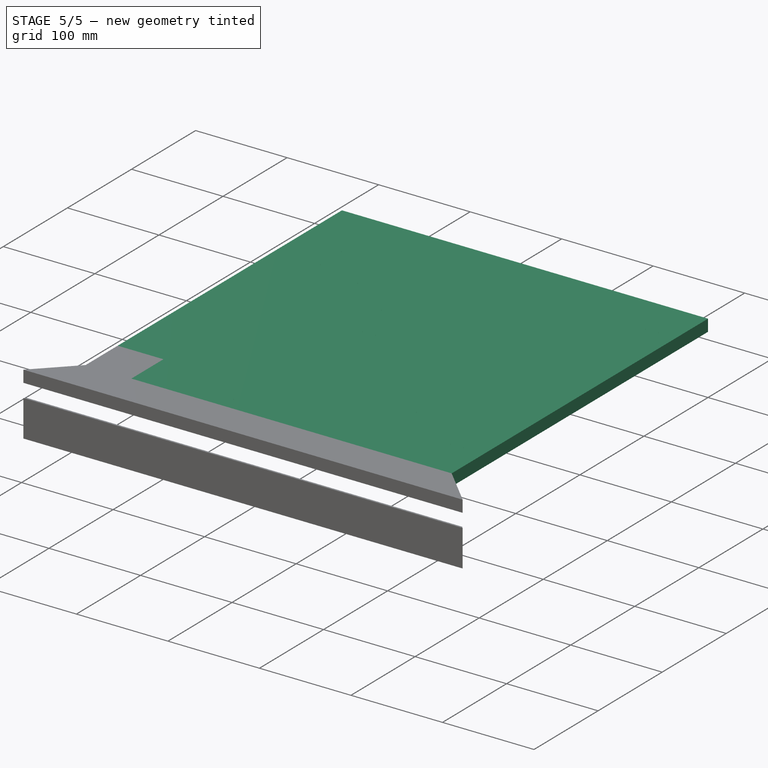
[diagram: stage 5 of 5 — iso view after this stage's code; geometry added in this stage tinted green]
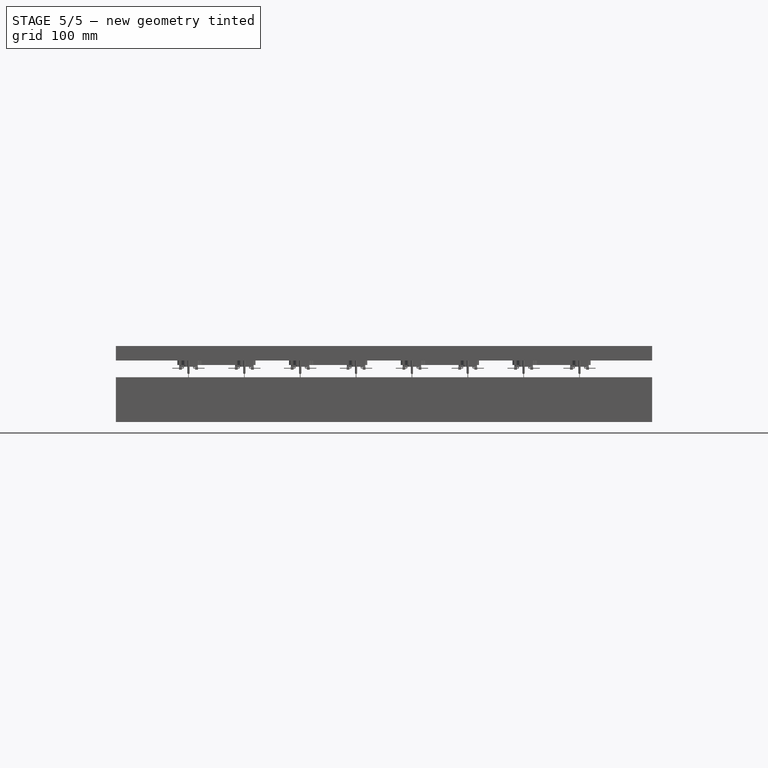
[diagram: stage 5 of 5 — front view after this stage's code; geometry added in this stage tinted green]
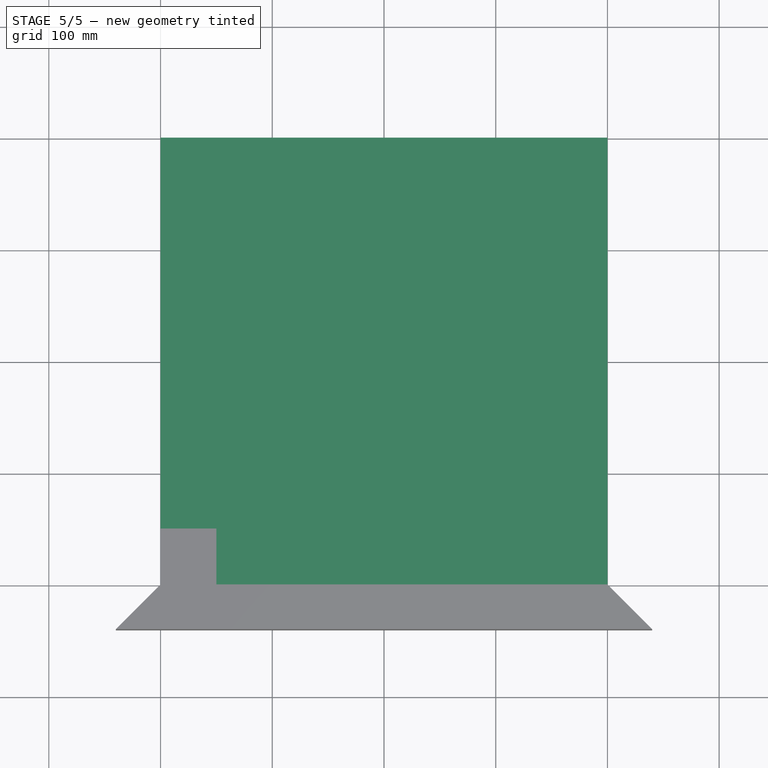
[diagram: stage 5 of 5 — top view after this stage's code; geometry added in this stage tinted green]
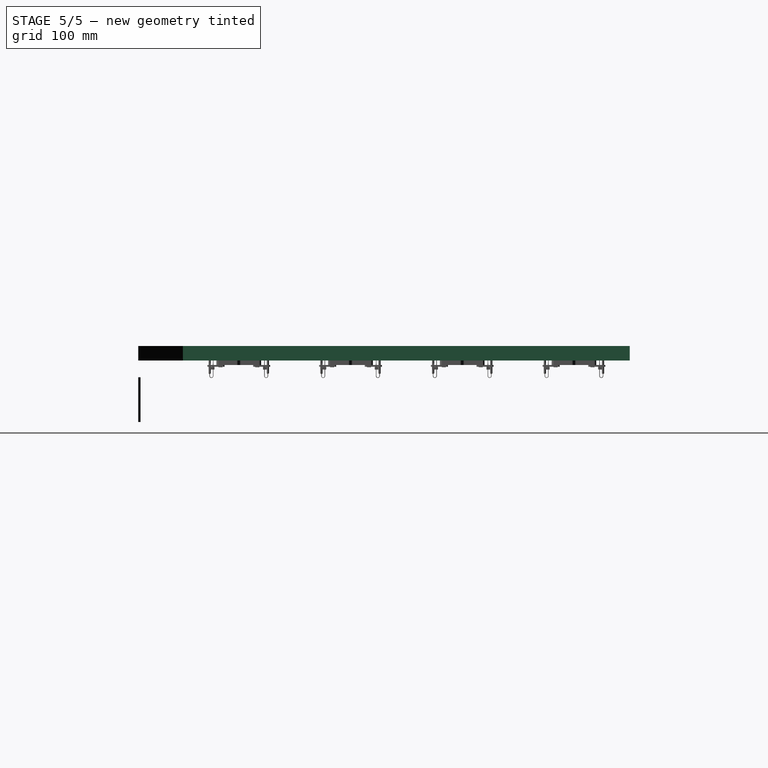
[diagram: stage 5 of 5 — right view after this stage's code; geometry added in this stage tinted green]
FEATURE [PartDesign::Body] Body  label="SW"
  Group = -> [Sketch,Pad,Sketch002,Pocket]
  Origin = -> Origin
  Tip = -> Pocket
FEATURE [PartDesign::FeatureBase] Clone  label="CloneSE"
  BaseFeature = -> Body
FEATURE [PartDesign::Body] Body001  label="SE"
  BaseFeature = -> Body
  Group = -> [Clone]
  Origin = -> Origin001
  Placement = pos=(50,0,0) rot=(0,0,1;0rad)
  Tip = -> Clone
FEATURE [PartDesign::FeatureBase] Clone001  label="CloneNE"
  BaseFeature = -> Body
FEATURE [PartDesign::Body] Body002  label="NE"
  BaseFeature = -> Body
  Group = -> [Clone001]
  Origin = -> Origin002
  Placement = pos=(50,50,0) rot=(0,0,1;0rad)
  Tip = -> Clone001
FEATURE [PartDesign::FeatureBase] Clone002  label="CloneNW"
  BaseFeature = -> Body
FEATURE [PartDesign::Body] Body003  label="NW"
  BaseFeature = -> Body
  Group = -> [Clone002]
  Origin = -> Origin003
  Placement = pos=(0,50,0) rot=(0,0,1;0rad)
  Tip = -> Clone002
FEATURE [Part::Compound] Compound
  Links = -> [Body,Body001,Body002,Body003]
FEATURE [Part::FeaturePython] Array  label="Grid"  # Draft array (typed FeaturePython)
  Angle = 360
  ArrayType = 0
  Axis = (0,0,1)
  Base = -> Compound
  Center = (0,0,0)
  Count = 16
  ExpandArray = false
  Fuse = false
  IntervalAxis = (0,0,0)
  IntervalX = (100,0,0)
  IntervalY = (0,100,0)
  IntervalZ = (0,0,100)
  NumberCircles = 3
  NumberPolar = 5
  NumberX = 4
  NumberY = 4
  NumberZ = 1
  PlacementList = 16 placements: [(0,0,0),(0,100,0),(0,200,0),(0,300,0),(100,0,0),(100,100,0),(100,200,0),(100,300,0),(200,0,0),(200,100,0),(200,200,0),(200,300,0),(300,0,0),(300,100,0),(300,200,0),(300,300,0)]
  RadialDistance = 50
  ScaleList = (16) [(1,1,1),(1,1,1),(1,1,1),(1,1,1),(1,1,1),(1,1,1),(1,1,1),(1,1,1),(1,1,1),(1,1,1),(1,1,1),(1,1,1),(1,1,1),(1,1,1),(1,1,1),(1,1,1)]
  Symmetry = 1
  TangentialDistance = 25
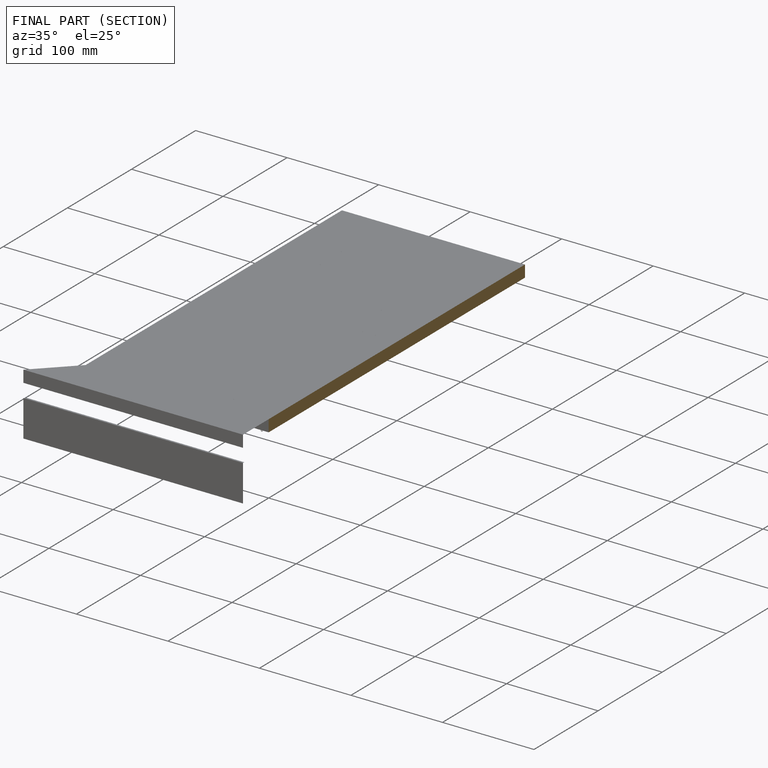
[diagram: finished part — half-section view (interior)]
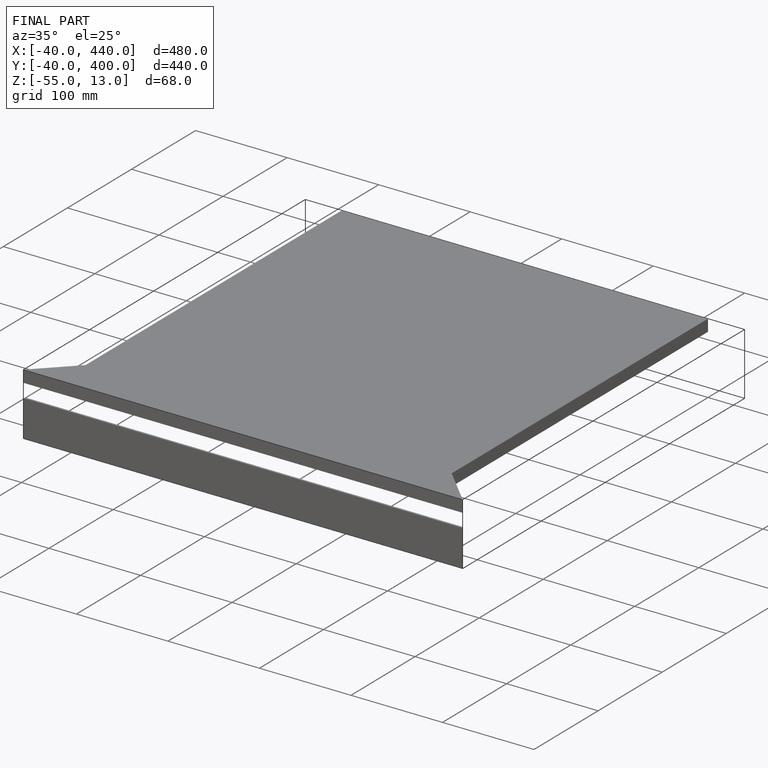
[diagram: finished part — iso view with bounding-box wireframe]
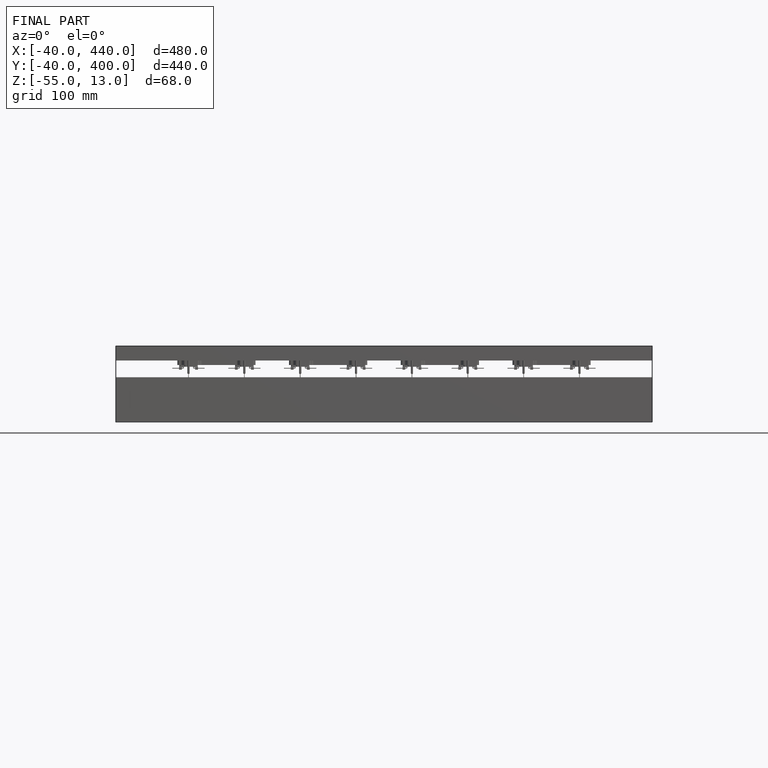
[diagram: finished part — front view with bounding-box wireframe]
